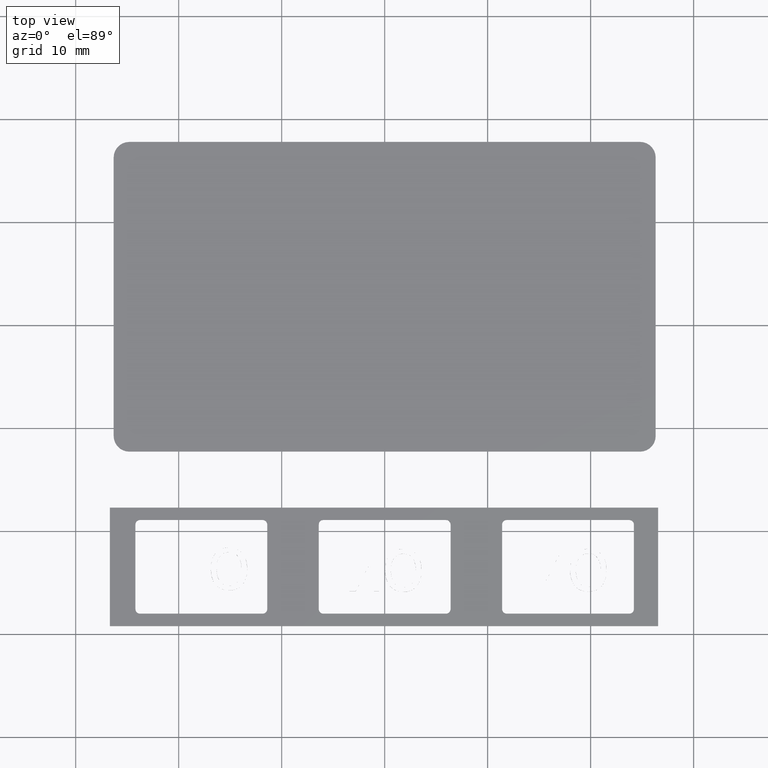
[diagram: clean part render]
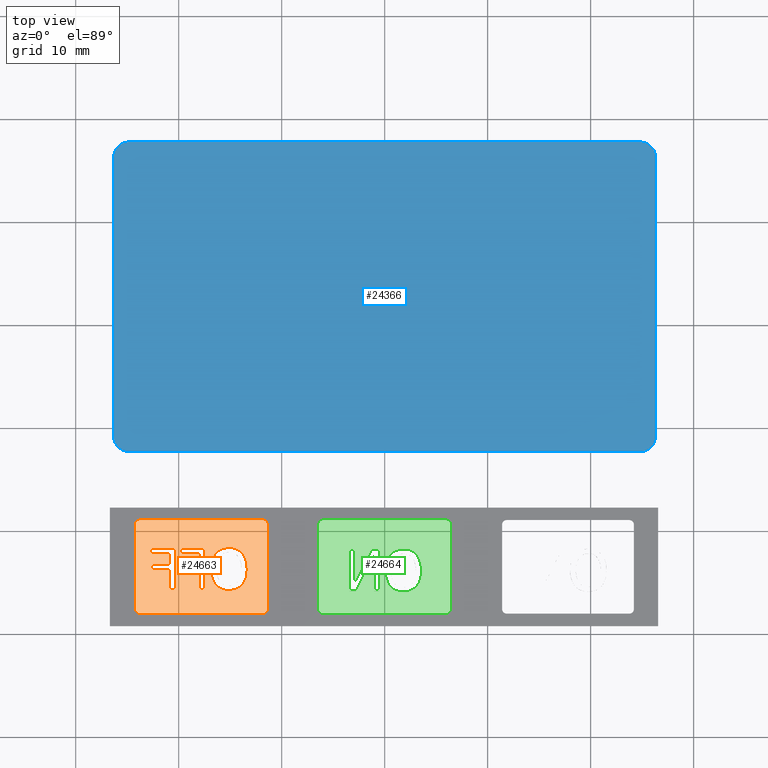
[diagram: same view with three faces highlighted in distinct colors, each labeled with its STEP entity id]
A machine part, top view with three faces highlighted in distinct colors.
Their STEP definitions:

[orange] entity #24663 — the highlighted planar face has unit normal (0, -0, 1).
#72=FACE_BOUND('',#7270,.T.);
#73=FACE_BOUND('',#7271,.T.);
#74=FACE_BOUND('',#7272,.T.);
#339=PLANE('',#27607);
#550=B_SPLINE_CURVE_WITH_KNOTS('',2,(#44091,#44092,#44093,#44094),
 .UNSPECIFIED.,.F.,.F.,(3,1,3),(0.,1.,2.),.UNSPECIFIED.);
#551=B_SPLINE_CURVE_WITH_KNOTS('',2,(#44096,#44097,#44098,#44099),
 .UNSPECIFIED.,.F.,.F.,(3,1,3),(0.,1.,2.),.UNSPECIFIED.);
#552=B_SPLINE_CURVE_WITH_KNOTS('',2,(#44101,#44102,#44103,#44104),
 .UNSPECIFIED.,.F.,.F.,(3,1,3),(0.,1.,2.),.UNSPECIFIED.);
#553=B_SPLINE_CURVE_WITH_KNOTS('',2,(#44106,#44107,#44108,#44109),
 .UNSPECIFIED.,.F.,.F.,(3,1,3),(0.,1.,2.),.UNSPECIFIED.);
#554=B_SPLINE_CURVE_WITH_KNOTS('',2,(#44111,#44112,#44113,#44114),
 .UNSPECIFIED.,.F.,.F.,(3,1,3),(0.,1.,2.),.UNSPECIFIED.);
#555=B_SPLINE_CURVE_WITH_KNOTS('',2,(#44116,#44117,#44118,#44119),
 .UNSPECIFIED.,.F.,.F.,(3,1,3),(0.,1.,2.),.UNSPECIFIED.);
#556=B_SPLINE_CURVE_WITH_KNOTS('',2,(#44121,#44122,#44123,#44124),
 .UNSPECIFIED.,.F.,.F.,(3,1,3),(0.,1.,2.),.UNSPECIFIED.);
#557=B_SPLINE_CURVE_WITH_KNOTS('',2,(#44125,#44126,#44127,#44128),
 .UNSPECIFIED.,.F.,.F.,(3,1,3),(0.,1.,2.),.UNSPECIFIED.);
#1538=LINE('',#40800,#3185);
#1541=LINE('',#40808,#3188);
#1544=LINE('',#40816,#3191);
#1547=LINE('',#40823,#3194);
#2093=LINE('',#44071,#3740);
#2094=LINE('',#44073,#3741);
#2095=LINE('',#44075,#3742);
#2096=LINE('',#44077,#3743);
#2097=LINE('',#44079,#3744);
#2098=LINE('',#44081,#3745);
#2099=LINE('',#44083,#3746);
#2100=LINE('',#44085,#3747);
#2101=LINE('',#44087,#3748);
#2102=LINE('',#44088,#3749);
#2103=LINE('',#44131,#3750);
#2104=LINE('',#44133,#3751);
#2105=LINE('',#44135,#3752);
#2106=LINE('',#44137,#3753);
#2107=LINE('',#44139,#3754);
#2108=LINE('',#44141,#3755);
#2109=LINE('',#44143,#3756);
#2110=LINE('',#44145,#3757);
#2111=LINE('',#44147,#3758);
#2112=LINE('',#44148,#3759);
#3185=VECTOR('',#33627,11.9);
#3188=VECTOR('',#33636,8.2);
#3191=VECTOR('',#33645,11.9);
#3194=VECTOR('',#33654,8.2);
#3740=VECTOR('',#34820,1.12803891470213);
#3741=VECTOR('',#34821,1.78282012381082);
#3742=VECTOR('',#34822,0.473257705593415);
#3743=VECTOR('',#34823,1.78282012381082);
#3744=VECTOR('',#34824,1.92544573371569);
#3745=VECTOR('',#34825,0.531604546009046);
#3746=VECTOR('',#34826,4.00000005960464);
#3747=VECTOR('',#34827,2.39222045704071);
#3748=VECTOR('',#34828,0.473257705593415);
#3749=VECTOR('',#34829,1.86061591103166);
#3750=VECTOR('',#34830,1.12803891470212);
#3751=VECTOR('',#34831,1.78282012381082);
#3752=VECTOR('',#34832,0.473257705593415);
#3753=VECTOR('',#34833,1.78282012381082);
#3754=VECTOR('',#34834,1.92544573371569);
#3755=VECTOR('',#34835,0.531604546009046);
#3756=VECTOR('',#34836,4.00000005960464);
#3757=VECTOR('',#34837,2.39222045704071);
#3758=VECTOR('',#34838,0.473257705593415);
#3759=VECTOR('',#34839,1.86061591103166);
#5941=FACE_OUTER_BOUND('',#7269,.T.);
#7269=EDGE_LOOP('',(#21772,#21773,#21774,#21775,#21776,#21777,#21778,#21779));
#7270=EDGE_LOOP('',(#21780,#21781,#21782,#21783,#21784,#21785,#21786,#21787,
#21788,#21789));
#7271=EDGE_LOOP('',(#21790,#21791,#21792,#21793,#21794,#21795,#21796,#21797));
#7272=EDGE_LOOP('',(#21798,#21799,#21800,#21801,#21802,#21803,#21804,#21805,
#21806,#21807));
#9043=CIRCLE('',#27287,0.45);
#9044=CIRCLE('',#27290,0.45);
#9045=CIRCLE('',#27293,0.45);
#9046=CIRCLE('',#27296,0.45);
#10849=VERTEX_POINT('',#40793);
#10850=VERTEX_POINT('',#40794);
#10851=VERTEX_POINT('',#40799);
#10852=VERTEX_POINT('',#40803);
#10853=VERTEX_POINT('',#40807);
#10854=VERTEX_POINT('',#40811);
#10855=VERTEX_POINT('',#40815);
#10856=VERTEX_POINT('',#40819);
#11313=VERTEX_POINT('',#44069);
#11314=VERTEX_POINT('',#44070);
#11315=VERTEX_POINT('',#44072);
#11316=VERTEX_POINT('',#44074);
#11317=VERTEX_POINT('',#44076);
#11318=VERTEX_POINT('',#44078);
#11319=VERTEX_POINT('',#44080);
#11320=VERTEX_POINT('',#44082);
#11321=VERTEX_POINT('',#44084);
#11322=VERTEX_POINT('',#44086);
#11323=VERTEX_POINT('',#44089);
#11324=VERTEX_POINT('',#44090);
#11325=VERTEX_POINT('',#44095);
#11326=VERTEX_POINT('',#44100);
#11327=VERTEX_POINT('',#44105);
#11328=VERTEX_POINT('',#44110);
#11329=VERTEX_POINT('',#44115);
#11330=VERTEX_POINT('',#44120);
#11331=VERTEX_POINT('',#44129);
#11332=VERTEX_POINT('',#44130);
#11333=VERTEX_POINT('',#44132);
#11334=VERTEX_POINT('',#44134);
#11335=VERTEX_POINT('',#44136);
#11336=VERTEX_POINT('',#44138);
#11337=VERTEX_POINT('',#44140);
#11338=VERTEX_POINT('',#44142);
#11339=VERTEX_POINT('',#44144);
#11340=VERTEX_POINT('',#44146);
#14080=EDGE_CURVE('',#10849,#10850,#9043,.T.);
#14083=EDGE_CURVE('',#10851,#10849,#1538,.T.);
#14085=EDGE_CURVE('',#10852,#10851,#9044,.T.);
#14087=EDGE_CURVE('',#10853,#10852,#1541,.T.);
#14089=EDGE_CURVE('',#10854,#10853,#9045,.T.);
#14091=EDGE_CURVE('',#10855,#10854,#1544,.T.);
#14093=EDGE_CURVE('',#10856,#10855,#9046,.T.);
#14095=EDGE_CURVE('',#10850,#10856,#1547,.T.);
#14823=EDGE_CURVE('',#11313,#11314,#2093,.T.);
#14824=EDGE_CURVE('',#11314,#11315,#2094,.T.);
#14825=EDGE_CURVE('',#11315,#11316,#2095,.T.);
#14826=EDGE_CURVE('',#11316,#11317,#2096,.T.);
#14827=EDGE_CURVE('',#11317,#11318,#2097,.T.);
#14828=EDGE_CURVE('',#11318,#11319,#2098,.T.);
#14829=EDGE_CURVE('',#11319,#11320,#2099,.T.);
#14830=EDGE_CURVE('',#11320,#11321,#2100,.T.);
#14831=EDGE_CURVE('',#11321,#11322,#2101,.T.);
#14832=EDGE_CURVE('',#11322,#11313,#2102,.T.);
#14833=EDGE_CURVE('',#11323,#11324,#550,.T.);
#14834=EDGE_CURVE('',#11324,#11325,#551,.T.);
#14835=EDGE_CURVE('',#11325,#11326,#552,.T.);
#14836=EDGE_CURVE('',#11326,#11327,#553,.T.);
#14837=EDGE_CURVE('',#11327,#11328,#554,.T.);
#14838=EDGE_CURVE('',#11328,#11329,#555,.T.);
#14839=EDGE_CURVE('',#11329,#11330,#556,.T.);
#14840=EDGE_CURVE('',#11330,#11323,#557,.T.);
#14841=EDGE_CURVE('',#11331,#11332,#2103,.T.);
#14842=EDGE_CURVE('',#11332,#11333,#2104,.T.);
#14843=EDGE_CURVE('',#11333,#11334,#2105,.T.);
#14844=EDGE_CURVE('',#11334,#11335,#2106,.T.);
#14845=EDGE_CURVE('',#11335,#11336,#2107,.T.);
#14846=EDGE_CURVE('',#11336,#11337,#2108,.T.);
#14847=EDGE_CURVE('',#11337,#11338,#2109,.T.);
#14848=EDGE_CURVE('',#11338,#11339,#2110,.T.);
#14849=EDGE_CURVE('',#11339,#11340,#2111,.T.);
#14850=EDGE_CURVE('',#11340,#11331,#2112,.T.);
#21772=ORIENTED_EDGE('',*,*,#14095,.T.);
#21773=ORIENTED_EDGE('',*,*,#14093,.T.);
#21774=ORIENTED_EDGE('',*,*,#14091,.T.);
#21775=ORIENTED_EDGE('',*,*,#14089,.T.);
#21776=ORIENTED_EDGE('',*,*,#14087,.T.);
#21777=ORIENTED_EDGE('',*,*,#14085,.T.);
#21778=ORIENTED_EDGE('',*,*,#14083,.T.);
#21779=ORIENTED_EDGE('',*,*,#14080,.T.);
#21780=ORIENTED_EDGE('',*,*,#14823,.T.);
#21781=ORIENTED_EDGE('',*,*,#14824,.T.);
#21782=ORIENTED_EDGE('',*,*,#14825,.T.);
#21783=ORIENTED_EDGE('',*,*,#14826,.T.);
#21784=ORIENTED_EDGE('',*,*,#14827,.T.);
#21785=ORIENTED_EDGE('',*,*,#14828,.T.);
#21786=ORIENTED_EDGE('',*,*,#14829,.T.);
#21787=ORIENTED_EDGE('',*,*,#14830,.T.);
#21788=ORIENTED_EDGE('',*,*,#14831,.T.);
#21789=ORIENTED_EDGE('',*,*,#14832,.T.);
#21790=ORIENTED_EDGE('',*,*,#14833,.T.);
#21791=ORIENTED_EDGE('',*,*,#14834,.T.);
#21792=ORIENTED_EDGE('',*,*,#14835,.T.);
#21793=ORIENTED_EDGE('',*,*,#14836,.T.);
#21794=ORIENTED_EDGE('',*,*,#14837,.T.);
#21795=ORIENTED_EDGE('',*,*,#14838,.T.);
#21796=ORIENTED_EDGE('',*,*,#14839,.T.);
#21797=ORIENTED_EDGE('',*,*,#14840,.T.);
#21798=ORIENTED_EDGE('',*,*,#14841,.T.);
#21799=ORIENTED_EDGE('',*,*,#14842,.T.);
#21800=ORIENTED_EDGE('',*,*,#14843,.T.);
#21801=ORIENTED_EDGE('',*,*,#14844,.T.);
#21802=ORIENTED_EDGE('',*,*,#14845,.T.);
#21803=ORIENTED_EDGE('',*,*,#14846,.T.);
#21804=ORIENTED_EDGE('',*,*,#14847,.T.);
#21805=ORIENTED_EDGE('',*,*,#14848,.T.);
#21806=ORIENTED_EDGE('',*,*,#14849,.T.);
#21807=ORIENTED_EDGE('',*,*,#14850,.T.);
#24663=ADVANCED_FACE('',(#5941,#72,#73,#74),#339,.F.);
#27287=AXIS2_PLACEMENT_3D('',#40795,#33621,#33622);
#27290=AXIS2_PLACEMENT_3D('',#40804,#33631,#33632);
#27293=AXIS2_PLACEMENT_3D('',#40812,#33640,#33641);
#27296=AXIS2_PLACEMENT_3D('',#40820,#33649,#33650);
#27607=AXIS2_PLACEMENT_3D('',#44068,#34818,#34819);
#33621=DIRECTION('center_axis',(-1.19117678683756E-15,1.03039885219751E-17,
-1.));
#33622=DIRECTION('ref_axis',(-2.75152572753243E-16,1.,-3.41278292167793E-17));
#33627=DIRECTION('',(1.,2.75152572753243E-16,-1.19117678683756E-15));
#33631=DIRECTION('center_axis',(-1.19117678683756E-15,1.03039885219751E-17,
-1.));
#33632=DIRECTION('ref_axis',(-1.,-2.75152572753243E-16,-3.5619655373375E-16));
#33636=DIRECTION('',(-8.16724779887465E-16,1.,1.03039885219761E-17));
#33640=DIRECTION('center_axis',(-1.19117678683756E-15,1.03039885219751E-17,
-1.));
#33641=DIRECTION('ref_axis',(2.75152572753243E-16,-1.,3.41278292167793E-17));
#33645=DIRECTION('',(-1.,-2.75152572753243E-16,1.19117678683756E-15));
#33649=DIRECTION('center_axis',(-1.19117678683756E-15,1.03039885219751E-17,
-1.));
#33650=DIRECTION('ref_axis',(1.,2.75152572753243E-16,3.5619655373375E-16));
#33654=DIRECTION('',(8.16724779887465E-16,-1.,-1.03039885219761E-17));
#34818=DIRECTION('center_axis',(1.19117678683756E-15,-1.03039885219751E-17,
1.));
#34819=DIRECTION('ref_axis',(-1.,-7.105427357601E-16,1.19348975147204E-15));
#34820=DIRECTION('',(7.24558038908854E-16,-1.,-1.0303988521976E-17));
#34821=DIRECTION('',(-1.,-7.24558038908853E-16,1.19117678683756E-15));
#34822=DIRECTION('',(7.24558038908854E-16,-1.,-1.0303988521976E-17));
#34823=DIRECTION('',(1.,7.24558038908853E-16,-1.19117678683756E-15));
#34824=DIRECTION('',(7.24558038908854E-16,-1.,-1.0303988521976E-17));
#34825=DIRECTION('',(1.,7.24558038908854E-16,-1.19117678683756E-15));
#34826=DIRECTION('',(-7.24558038908854E-16,1.,1.0303988521976E-17));
#34827=DIRECTION('',(-1.,-7.24558038908854E-16,1.19117678683756E-15));
#34828=DIRECTION('',(7.24558038908854E-16,-1.,-1.0303988521976E-17));
#34829=DIRECTION('',(1.,7.24558038908854E-16,-1.19117678683756E-15));
#34830=DIRECTION('',(7.24558038908854E-16,-1.,-1.0303988521976E-17));
#34831=DIRECTION('',(-1.,-5.70643146426386E-15,1.19117678683756E-15));
#34832=DIRECTION('',(7.24558038908854E-16,-1.,-1.0303988521976E-17));
#34833=DIRECTION('',(1.,7.24558038908854E-16,-1.19117678683756E-15));
#34834=DIRECTION('',(7.24558038908854E-16,-1.,-1.0303988521976E-17));
#34835=DIRECTION('',(1.,7.24558038908854E-16,-1.19117678683756E-15));
#34836=DIRECTION('',(-7.24558038908854E-16,1.,1.0303988521976E-17));
#34837=DIRECTION('',(-1.,-7.24558038908854E-16,1.19117678683756E-15));
#34838=DIRECTION('',(7.24558038908854E-16,-1.,-1.0303988521976E-17));
#34839=DIRECTION('',(1.,7.24558038908854E-16,-1.19117678683756E-15));
#40793=CARTESIAN_POINT('',(-11.8499999999995,-88.9000000000002,0.375000000000023));
#40794=CARTESIAN_POINT('',(-11.3999999999995,-89.3500000000002,0.375000000000014));
#40795=CARTESIAN_POINT('Origin',(-11.8499999999995,-89.3500000000002,0.375000000000005));
#40799=CARTESIAN_POINT('',(-23.7499999999995,-88.9000000000002,0.375000000000032));
#40800=CARTESIAN_POINT('',(-5.92499999999947,-88.9000000000002,0.375000000000014));
#40803=CARTESIAN_POINT('',(-24.1999999999995,-89.3500000000002,0.375000000000032));
#40804=CARTESIAN_POINT('Origin',(-23.7499999999995,-89.3500000000002,0.374999999999996));
#40807=CARTESIAN_POINT('',(-24.1999999999995,-97.5500000000002,0.375000000000032));
#40808=CARTESIAN_POINT('',(-24.1999999999995,-63.6750000000001,0.375000000000032));
#40811=CARTESIAN_POINT('',(-23.7499999999995,-98.0000000000002,0.375000000000032));
#40812=CARTESIAN_POINT('Origin',(-23.7499999999995,-97.5500000000002,0.374999999999996));
#40815=CARTESIAN_POINT('',(-11.8499999999995,-98.0000000000002,0.375000000000023));
#40816=CARTESIAN_POINT('',(-11.8749999999995,-98.0000000000002,0.375000000000023));
#40819=CARTESIAN_POINT('',(-11.3999999999995,-97.5500000000002,0.375000000000014));
#40820=CARTESIAN_POINT('Origin',(-11.8499999999995,-97.5500000000002,0.375000000000005));
#40823=CARTESIAN_POINT('',(-11.3999999999995,-67.7750000000001,0.375000000000023));
#44068=CARTESIAN_POINT('Origin',(5.33151852812161E-13,-38.,0.375000000000005));
#44069=CARTESIAN_POINT('',(-20.8629611318724,-92.1304310814957,0.375000000000032));
#44070=CARTESIAN_POINT('',(-20.8629611318724,-93.2584699961978,0.375000000000032));
#44071=CARTESIAN_POINT('',(-20.8629611318725,-65.6292349980989,0.375000000000023));
#44072=CARTESIAN_POINT('',(-22.6457812556833,-93.2584699961978,0.375000000000032));
#44073=CARTESIAN_POINT('',(-11.3228906278414,-93.2584699961978,0.375000000000023));
#44074=CARTESIAN_POINT('',(-22.6457812556833,-93.7317277017912,0.375000000000032));
#44075=CARTESIAN_POINT('',(-22.6457812556833,-65.8658638508956,0.375000000000032));
#44076=CARTESIAN_POINT('',(-20.8629611318724,-93.7317277017912,0.375000000000032));
#44077=CARTESIAN_POINT('',(-10.4314805659359,-93.7317277017912,0.375000000000023));
#44078=CARTESIAN_POINT('',(-20.8629611318724,-95.6571734355069,0.375000000000032));
#44079=CARTESIAN_POINT('',(-20.8629611318725,-66.8285867177535,0.375000000000023));
#44080=CARTESIAN_POINT('',(-20.3313565858634,-95.6571734355069,0.375000000000032));
#44081=CARTESIAN_POINT('',(-10.1656782929314,-95.6571734355069,0.375000000000014));
#44082=CARTESIAN_POINT('',(-20.3313565858634,-91.6571733759023,0.375000000000032));
#44083=CARTESIAN_POINT('',(-20.3313565858634,-64.8285866879511,0.375000000000023));
#44084=CARTESIAN_POINT('',(-22.7235770429041,-91.6571733759023,0.375000000000032));
#44085=CARTESIAN_POINT('',(-11.3617885214518,-91.6571733759023,0.375000000000023));
#44086=CARTESIAN_POINT('',(-22.7235770429041,-92.1304310814957,0.375000000000032));
#44087=CARTESIAN_POINT('',(-22.7235770429041,-65.0652155407479,0.375000000000032));
#44088=CARTESIAN_POINT('',(-10.4314805659359,-92.1304310814957,0.375000000000023));
#44089=CARTESIAN_POINT('',(-16.8791685279388,-93.6571734057046,0.375000000000032));
#44090=CARTESIAN_POINT('',(-16.399427840077,-95.1968816944503,0.375000000000032));
#44091=CARTESIAN_POINT('Ctrl Pts',(-16.8791685279388,-93.6571734057046,
0.375000000000032));
#44092=CARTESIAN_POINT('Ctrl Pts',(-16.8791685279388,-94.1433970758348,
0.375000000000032));
#44093=CARTESIAN_POINT('Ctrl Pts',(-16.6328152017395,-94.9310794214458,
0.375000000000032));
#44094=CARTESIAN_POINT('Ctrl Pts',(-16.399427840077,-95.1968816944503,0.375000000000032));
#44095=CARTESIAN_POINT('',(-15.1093143686648,-95.7414522049961,0.375000000000032));
#44096=CARTESIAN_POINT('Ctrl Pts',(-16.399427840077,-95.1968816944503,0.375000000000032));
#44097=CARTESIAN_POINT('Ctrl Pts',(-16.1530745138777,-95.4756499319916,
0.375000000000032));
#44098=CARTESIAN_POINT('Ctrl Pts',(-15.5015347959032,-95.7414522049961,
0.375000000000032));
#44099=CARTESIAN_POINT('Ctrl Pts',(-15.1093143686648,-95.7414522049961,
0.375000000000032));
#44100=CARTESIAN_POINT('',(-13.8192008972526,-95.1968816944503,0.375000000000032));
#44101=CARTESIAN_POINT('Ctrl Pts',(-15.1093143686648,-95.7414522049961,
0.375000000000032));
#44102=CARTESIAN_POINT('Ctrl Pts',(-14.7041279768896,-95.7414522049961,
0.375000000000032));
#44103=CARTESIAN_POINT('Ctrl Pts',(-14.0558297500493,-95.465925458589,0.375000000000032));
#44104=CARTESIAN_POINT('Ctrl Pts',(-13.8192008972526,-95.1968816944503,
0.375000000000032));
#44105=CARTESIAN_POINT('',(-13.342701700525,-93.6571734057046,0.375000000000032));
#44106=CARTESIAN_POINT('Ctrl Pts',(-13.8192008972526,-95.1968816944503,
0.375000000000032));
#44107=CARTESIAN_POINT('Ctrl Pts',(-13.5890550267243,-94.9310794214458,
0.375000000000032));
#44108=CARTESIAN_POINT('Ctrl Pts',(-13.342701700525,-94.1498800581032,0.375000000000032));
#44109=CARTESIAN_POINT('Ctrl Pts',(-13.342701700525,-93.6571734057046,0.375000000000032));
#44110=CARTESIAN_POINT('',(-13.8224423883868,-92.1142236258247,0.375000000000032));
#44111=CARTESIAN_POINT('Ctrl Pts',(-13.342701700525,-93.6571734057046,0.375000000000032));
#44112=CARTESIAN_POINT('Ctrl Pts',(-13.342701700525,-93.1547422799034,0.375000000000032));
#44113=CARTESIAN_POINT('Ctrl Pts',(-13.5922965178585,-92.3897503722318,
0.375000000000032));
#44114=CARTESIAN_POINT('Ctrl Pts',(-13.8224423883868,-92.1142236258247,
0.375000000000032));
#44115=CARTESIAN_POINT('',(-15.1093143686648,-91.572894606413,0.375000000000032));
#44116=CARTESIAN_POINT('Ctrl Pts',(-13.8224423883868,-92.1142236258247,
0.375000000000032));
#44117=CARTESIAN_POINT('Ctrl Pts',(-14.0558297500493,-91.8484213528201,
0.375000000000032));
#44118=CARTESIAN_POINT('Ctrl Pts',(-14.7073694680238,-91.572894606413,0.375000000000032));
#44119=CARTESIAN_POINT('Ctrl Pts',(-15.1093143686648,-91.572894606413,0.375000000000032));
#44120=CARTESIAN_POINT('',(-16.399427840077,-92.1142236258247,0.375000000000032));
#44121=CARTESIAN_POINT('Ctrl Pts',(-15.1093143686648,-91.572894606413,0.375000000000032));
#44122=CARTESIAN_POINT('Ctrl Pts',(-15.5177422515742,-91.572894606413,0.375000000000032));
#44123=CARTESIAN_POINT('Ctrl Pts',(-16.1725234606829,-91.8581458262227,
0.375000000000032));
#44124=CARTESIAN_POINT('Ctrl Pts',(-16.399427840077,-92.1142236258247,0.375000000000032));
#44125=CARTESIAN_POINT('Ctrl Pts',(-16.399427840077,-92.1142236258247,0.375000000000032));
#44126=CARTESIAN_POINT('Ctrl Pts',(-16.6263322194711,-92.3800258988292,
0.375000000000032));
#44127=CARTESIAN_POINT('Ctrl Pts',(-16.8791685279388,-93.1579837710376,
0.375000000000032));
#44128=CARTESIAN_POINT('Ctrl Pts',(-16.8791685279388,-93.6571734057046,
0.375000000000032));
#44129=CARTESIAN_POINT('',(-17.9942414781041,-92.1304310814957,0.375000000000023));
#44130=CARTESIAN_POINT('',(-17.9942414781041,-93.2584699961978,0.375000000000023));
#44131=CARTESIAN_POINT('',(-17.9942414781041,-65.6292349980989,0.375000000000023));
#44132=CARTESIAN_POINT('',(-19.7770616019149,-93.2584699961978,0.375000000000032));
#44133=CARTESIAN_POINT('',(-9.88853080095705,-93.2584699961977,0.375000000000014));
#44134=CARTESIAN_POINT('',(-19.7770616019149,-93.7317277017912,0.375000000000032));
#44135=CARTESIAN_POINT('',(-19.777061601915,-65.8658638508956,0.375000000000023));
#44136=CARTESIAN_POINT('',(-17.9942414781041,-93.7317277017912,0.375000000000023));
#44137=CARTESIAN_POINT('',(-8.99712073905178,-93.7317277017912,0.375000000000014));
#44138=CARTESIAN_POINT('',(-17.9942414781041,-95.6571734355069,0.375000000000023));
#44139=CARTESIAN_POINT('',(-17.9942414781041,-66.8285867177535,0.375000000000023));
#44140=CARTESIAN_POINT('',(-17.4626369320951,-95.6571734355069,0.375000000000032));
#44141=CARTESIAN_POINT('',(-8.73131846604725,-95.6571734355069,0.375000000000014));
#44142=CARTESIAN_POINT('',(-17.4626369320951,-91.6571733759023,0.375000000000032));
#44143=CARTESIAN_POINT('',(-17.4626369320951,-64.8285866879511,0.375000000000023));
#44144=CARTESIAN_POINT('',(-19.8548573891358,-91.6571733759023,0.375000000000032));
#44145=CARTESIAN_POINT('',(-9.92742869456761,-91.6571733759023,0.375000000000014));
#44146=CARTESIAN_POINT('',(-19.8548573891358,-92.1304310814957,0.375000000000032));
#44147=CARTESIAN_POINT('',(-19.8548573891358,-65.0652155407479,0.375000000000023));
#44148=CARTESIAN_POINT('',(-8.99712073905178,-92.1304310814957,0.375000000000014));

[blue] entity #24366 — the highlighted planar face has unit normal (0, -0, 1).
#140=PLANE('',#27298);
#1548=LINE('',#40827,#3195);
#1549=LINE('',#40831,#3196);
#1550=LINE('',#40835,#3197);
#1551=LINE('',#40839,#3198);
#3195=VECTOR('',#33657,49.6);
#3196=VECTOR('',#33660,27.05);
#3197=VECTOR('',#33663,49.6);
#3198=VECTOR('',#33666,27.05);
#5644=FACE_OUTER_BOUND('',#6943,.T.);
#6943=EDGE_LOOP('',(#20228,#20229,#20230,#20231,#20232,#20233,#20234,#20235));
#9047=CIRCLE('',#27299,1.51066017177982);
#9048=CIRCLE('',#27300,1.51066017177982);
#9049=CIRCLE('',#27301,1.51066017177982);
#9050=CIRCLE('',#27302,1.51066017177982);
#10857=VERTEX_POINT('',#40825);
#10858=VERTEX_POINT('',#40826);
#10859=VERTEX_POINT('',#40828);
#10860=VERTEX_POINT('',#40830);
#10861=VERTEX_POINT('',#40832);
#10862=VERTEX_POINT('',#40834);
#10863=VERTEX_POINT('',#40836);
#10864=VERTEX_POINT('',#40838);
#14096=EDGE_CURVE('',#10857,#10858,#1548,.T.);
#14097=EDGE_CURVE('',#10859,#10857,#9047,.T.);
#14098=EDGE_CURVE('',#10860,#10859,#1549,.T.);
#14099=EDGE_CURVE('',#10861,#10860,#9048,.T.);
#14100=EDGE_CURVE('',#10862,#10861,#1550,.T.);
#14101=EDGE_CURVE('',#10863,#10862,#9049,.T.);
#14102=EDGE_CURVE('',#10864,#10863,#1551,.T.);
#14103=EDGE_CURVE('',#10858,#10864,#9050,.T.);
#20228=ORIENTED_EDGE('',*,*,#14096,.F.);
#20229=ORIENTED_EDGE('',*,*,#14097,.F.);
#20230=ORIENTED_EDGE('',*,*,#14098,.F.);
#20231=ORIENTED_EDGE('',*,*,#14099,.F.);
#20232=ORIENTED_EDGE('',*,*,#14100,.F.);
#20233=ORIENTED_EDGE('',*,*,#14101,.F.);
#20234=ORIENTED_EDGE('',*,*,#14102,.F.);
#20235=ORIENTED_EDGE('',*,*,#14103,.F.);
#24366=ADVANCED_FACE('',(#5644),#140,.F.);
#27298=AXIS2_PLACEMENT_3D('',#40824,#33655,#33656);
#27299=AXIS2_PLACEMENT_3D('',#40829,#33658,#33659);
#27300=AXIS2_PLACEMENT_3D('',#40833,#33661,#33662);
#27301=AXIS2_PLACEMENT_3D('',#40837,#33664,#33665);
#27302=AXIS2_PLACEMENT_3D('',#40840,#33667,#33668);
#33655=DIRECTION('center_axis',(1.19117678683756E-15,-1.03039885219751E-17,
1.));
#33656=DIRECTION('ref_axis',(-1.,-1.4210854715202E-15,1.18793863634892E-15));
#33657=DIRECTION('',(1.,6.33289032309745E-16,-1.19117678683756E-15));
#33658=DIRECTION('center_axis',(1.19117678683756E-15,-1.03039885219751E-17,
1.));
#33659=DIRECTION('ref_axis',(2.75152572753243E-16,-1.,-1.03039885219755E-17));
#33660=DIRECTION('',(6.03499493159943E-16,-1.,-1.03039885219759E-17));
#33661=DIRECTION('center_axis',(1.19117678683756E-15,-1.03039885219751E-17,
1.));
#33662=DIRECTION('ref_axis',(-1.,-2.75152572753243E-16,1.19117678683756E-15));
#33663=DIRECTION('',(-1.,-6.33289032309745E-16,1.19117678683756E-15));
#33664=DIRECTION('center_axis',(1.19117678683756E-15,-1.03039885219751E-17,
1.));
#33665=DIRECTION('ref_axis',(-6.15455838679353E-15,1.,1.03039885219825E-17));
#33666=DIRECTION('',(3.00831663131376E-15,1.,1.03039885219716E-17));
#33667=DIRECTION('center_axis',(1.19117678683756E-15,-1.03039885219751E-17,
1.));
#33668=DIRECTION('ref_axis',(1.,2.75152572753243E-16,-1.19117678683756E-15));
#40824=CARTESIAN_POINT('Origin',(4.94853931096204E-13,-67.2250000000003,
0.574999999999983));
#40825=CARTESIAN_POINT('',(-24.7999999999995,-82.2606601717801,0.575000000000028));
#40826=CARTESIAN_POINT('',(24.8000000000005,-82.2606601717801,0.574999999999966));
#40827=CARTESIAN_POINT('',(24.8000000000005,-82.2606601717801,0.574999999999966));
#40828=CARTESIAN_POINT('',(-26.3106601717794,-80.7500000000002,0.575000000000028));
#40829=CARTESIAN_POINT('Origin',(-24.7999999999995,-80.7500000000002,0.575000000000028));
#40830=CARTESIAN_POINT('',(-26.3106601717794,-53.7000000000002,0.575000000000028));
#40831=CARTESIAN_POINT('',(-26.3106601717794,-80.7500000000002,0.575000000000028));
#40832=CARTESIAN_POINT('',(-24.7999999999995,-52.1893398282204,0.575000000000028));
#40833=CARTESIAN_POINT('Origin',(-24.7999999999995,-53.7000000000002,0.575000000000028));
#40834=CARTESIAN_POINT('',(24.8000000000005,-52.1893398282204,0.574999999999966));
#40835=CARTESIAN_POINT('',(-24.7999999999995,-52.1893398282204,0.575000000000028));
#40836=CARTESIAN_POINT('',(26.3106601717804,-53.7000000000002,0.574999999999966));
#40837=CARTESIAN_POINT('Origin',(24.8000000000005,-53.7000000000002,0.574999999999966));
#40838=CARTESIAN_POINT('',(26.3106601717803,-80.7500000000002,0.574999999999966));
#40839=CARTESIAN_POINT('',(26.3106601717804,-53.7000000000002,0.574999999999966));
#40840=CARTESIAN_POINT('Origin',(24.8000000000005,-80.7500000000002,0.574999999999966));

[green] entity #24664 — the highlighted planar face has unit normal (0, -0, 1).
#75=FACE_BOUND('',#7274,.T.);
#76=FACE_BOUND('',#7275,.T.);
#340=PLANE('',#27608);
#558=B_SPLINE_CURVE_WITH_KNOTS('',2,(#44172,#44173,#44174,#44175),
 .UNSPECIFIED.,.F.,.F.,(3,1,3),(0.,1.,2.),.UNSPECIFIED.);
#559=B_SPLINE_CURVE_WITH_KNOTS('',2,(#44177,#44178,#44179,#44180),
 .UNSPECIFIED.,.F.,.F.,(3,1,3),(0.,1.,2.),.UNSPECIFIED.);
#560=B_SPLINE_CURVE_WITH_KNOTS('',2,(#44182,#44183,#44184,#44185),
 .UNSPECIFIED.,.F.,.F.,(3,1,3),(0.,1.,2.),.UNSPECIFIED.);
#561=B_SPLINE_CURVE_WITH_KNOTS('',2,(#44187,#44188,#44189,#44190),
 .UNSPECIFIED.,.F.,.F.,(3,1,3),(0.,1.,2.),.UNSPECIFIED.);
#562=B_SPLINE_CURVE_WITH_KNOTS('',2,(#44192,#44193,#44194,#44195),
 .UNSPECIFIED.,.F.,.F.,(3,1,3),(0.,1.,2.),.UNSPECIFIED.);
#563=B_SPLINE_CURVE_WITH_KNOTS('',2,(#44197,#44198,#44199,#44200),
 .UNSPECIFIED.,.F.,.F.,(3,1,3),(0.,1.,2.),.UNSPECIFIED.);
#564=B_SPLINE_CURVE_WITH_KNOTS('',2,(#44202,#44203,#44204,#44205),
 .UNSPECIFIED.,.F.,.F.,(3,1,3),(0.,1.,2.),.UNSPECIFIED.);
#565=B_SPLINE_CURVE_WITH_KNOTS('',2,(#44206,#44207,#44208,#44209),
 .UNSPECIFIED.,.F.,.F.,(3,1,3),(0.,1.,2.),.UNSPECIFIED.);
#1526=LINE('',#40768,#3173);
#1529=LINE('',#40776,#3176);
#1532=LINE('',#40784,#3179);
#1535=LINE('',#40791,#3182);
#2113=LINE('',#44152,#3760);
#2114=LINE('',#44154,#3761);
#2115=LINE('',#44156,#3762);
#2116=LINE('',#44158,#3763);
#2117=LINE('',#44160,#3764);
#2118=LINE('',#44162,#3765);
#2119=LINE('',#44164,#3766);
#2120=LINE('',#44166,#3767);
#2121=LINE('',#44168,#3768);
#2122=LINE('',#44169,#3769);
#3173=VECTOR('',#33591,8.2);
#3176=VECTOR('',#33600,11.9);
#3179=VECTOR('',#33609,8.2);
#3182=VECTOR('',#33618,11.9);
#3760=VECTOR('',#34842,3.87654693840727);
#3761=VECTOR('',#34843,3.44894656679039);
#3762=VECTOR('',#34844,0.495948143532834);
#3763=VECTOR('',#34845,4.00000005960464);
#3764=VECTOR('',#34846,0.755267434268951);
#3765=VECTOR('',#34847,3.55315041912798);
#3766=VECTOR('',#34848,3.16693683811486);
#3767=VECTOR('',#34849,0.495948143532825);
#3768=VECTOR('',#34850,4.00000005960464);
#3769=VECTOR('',#34851,0.596434368693073);
#5942=FACE_OUTER_BOUND('',#7273,.T.);
#7273=EDGE_LOOP('',(#21808,#21809,#21810,#21811,#21812,#21813,#21814,#21815));
#7274=EDGE_LOOP('',(#21816,#21817,#21818,#21819,#21820,#21821,#21822,#21823,
#21824,#21825));
#7275=EDGE_LOOP('',(#21826,#21827,#21828,#21829,#21830,#21831,#21832,#21833));
#9039=CIRCLE('',#27275,0.45);
#9040=CIRCLE('',#27278,0.45);
#9041=CIRCLE('',#27281,0.45);
#9042=CIRCLE('',#27284,0.45);
#10841=VERTEX_POINT('',#40761);
#10842=VERTEX_POINT('',#40762);
#10843=VERTEX_POINT('',#40767);
#10844=VERTEX_POINT('',#40771);
#10845=VERTEX_POINT('',#40775);
#10846=VERTEX_POINT('',#40779);
#10847=VERTEX_POINT('',#40783);
#10848=VERTEX_POINT('',#40787);
#11341=VERTEX_POINT('',#44150);
#11342=VERTEX_POINT('',#44151);
#11343=VERTEX_POINT('',#44153);
#11344=VERTEX_POINT('',#44155);
#11345=VERTEX_POINT('',#44157);
#11346=VERTEX_POINT('',#44159);
#11347=VERTEX_POINT('',#44161);
#11348=VERTEX_POINT('',#44163);
#11349=VERTEX_POINT('',#44165);
#11350=VERTEX_POINT('',#44167);
#11351=VERTEX_POINT('',#44170);
#11352=VERTEX_POINT('',#44171);
#11353=VERTEX_POINT('',#44176);
#11354=VERTEX_POINT('',#44181);
#11355=VERTEX_POINT('',#44186);
#11356=VERTEX_POINT('',#44191);
#11357=VERTEX_POINT('',#44196);
#11358=VERTEX_POINT('',#44201);
#14064=EDGE_CURVE('',#10841,#10842,#9039,.T.);
#14067=EDGE_CURVE('',#10843,#10841,#1526,.T.);
#14069=EDGE_CURVE('',#10844,#10843,#9040,.T.);
#14071=EDGE_CURVE('',#10845,#10844,#1529,.T.);
#14073=EDGE_CURVE('',#10846,#10845,#9041,.T.);
#14075=EDGE_CURVE('',#10847,#10846,#1532,.T.);
#14077=EDGE_CURVE('',#10848,#10847,#9042,.T.);
#14079=EDGE_CURVE('',#10842,#10848,#1535,.T.);
#14851=EDGE_CURVE('',#11341,#11342,#2113,.T.);
#14852=EDGE_CURVE('',#11342,#11343,#2114,.T.);
#14853=EDGE_CURVE('',#11343,#11344,#2115,.T.);
#14854=EDGE_CURVE('',#11344,#11345,#2116,.T.);
#14855=EDGE_CURVE('',#11345,#11346,#2117,.T.);
#14856=EDGE_CURVE('',#11346,#11347,#2118,.T.);
#14857=EDGE_CURVE('',#11347,#11348,#2119,.T.);
#14858=EDGE_CURVE('',#11348,#11349,#2120,.T.);
#14859=EDGE_CURVE('',#11349,#11350,#2121,.T.);
#14860=EDGE_CURVE('',#11350,#11341,#2122,.T.);
#14861=EDGE_CURVE('',#11351,#11352,#558,.T.);
#14862=EDGE_CURVE('',#11352,#11353,#559,.T.);
#14863=EDGE_CURVE('',#11353,#11354,#560,.T.);
#14864=EDGE_CURVE('',#11354,#11355,#561,.T.);
#14865=EDGE_CURVE('',#11355,#11356,#562,.T.);
#14866=EDGE_CURVE('',#11356,#11357,#563,.T.);
#14867=EDGE_CURVE('',#11357,#11358,#564,.T.);
#14868=EDGE_CURVE('',#11358,#11351,#565,.T.);
#21808=ORIENTED_EDGE('',*,*,#14079,.T.);
#21809=ORIENTED_EDGE('',*,*,#14077,.T.);
#21810=ORIENTED_EDGE('',*,*,#14075,.T.);
#21811=ORIENTED_EDGE('',*,*,#14073,.T.);
#21812=ORIENTED_EDGE('',*,*,#14071,.T.);
#21813=ORIENTED_EDGE('',*,*,#14069,.T.);
#21814=ORIENTED_EDGE('',*,*,#14067,.T.);
#21815=ORIENTED_EDGE('',*,*,#14064,.T.);
#21816=ORIENTED_EDGE('',*,*,#14851,.T.);
#21817=ORIENTED_EDGE('',*,*,#14852,.T.);
#21818=ORIENTED_EDGE('',*,*,#14853,.T.);
#21819=ORIENTED_EDGE('',*,*,#14854,.T.);
#21820=ORIENTED_EDGE('',*,*,#14855,.T.);
#21821=ORIENTED_EDGE('',*,*,#14856,.T.);
#21822=ORIENTED_EDGE('',*,*,#14857,.T.);
#21823=ORIENTED_EDGE('',*,*,#14858,.T.);
#21824=ORIENTED_EDGE('',*,*,#14859,.T.);
#21825=ORIENTED_EDGE('',*,*,#14860,.T.);
#21826=ORIENTED_EDGE('',*,*,#14861,.T.);
#21827=ORIENTED_EDGE('',*,*,#14862,.T.);
#21828=ORIENTED_EDGE('',*,*,#14863,.T.);
#21829=ORIENTED_EDGE('',*,*,#14864,.T.);
#21830=ORIENTED_EDGE('',*,*,#14865,.T.);
#21831=ORIENTED_EDGE('',*,*,#14866,.T.);
#21832=ORIENTED_EDGE('',*,*,#14867,.T.);
#21833=ORIENTED_EDGE('',*,*,#14868,.T.);
#24664=ADVANCED_FACE('',(#5942,#75,#76),#340,.F.);
#27275=AXIS2_PLACEMENT_3D('',#40763,#33585,#33586);
#27278=AXIS2_PLACEMENT_3D('',#40772,#33595,#33596);
#27281=AXIS2_PLACEMENT_3D('',#40780,#33604,#33605);
#27284=AXIS2_PLACEMENT_3D('',#40788,#33613,#33614);
#27608=AXIS2_PLACEMENT_3D('',#44149,#34840,#34841);
#33585=DIRECTION('center_axis',(-1.19117678683756E-15,1.03039885219751E-17,
-1.));
#33586=DIRECTION('ref_axis',(1.,2.75152572753243E-16,3.5619655373375E-16));
#33591=DIRECTION('',(2.75152572753243E-16,-1.,-1.03039885219755E-17));
#33595=DIRECTION('center_axis',(-1.19117678683756E-15,1.03039885219751E-17,
-1.));
#33596=DIRECTION('ref_axis',(-2.75152572753243E-16,1.,-3.41278292167793E-17));
#33600=DIRECTION('',(1.,2.75152572753243E-16,-1.19117678683756E-15));
#33604=DIRECTION('center_axis',(-1.19117678683756E-15,1.03039885219751E-17,
-1.));
#33605=DIRECTION('ref_axis',(-1.,-2.75152572753243E-16,-3.5619655373375E-16));
#33609=DIRECTION('',(-8.16724779887465E-16,1.,1.03039885219761E-17));
#33613=DIRECTION('center_axis',(-1.19117678683756E-15,1.03039885219751E-17,
-1.));
#33614=DIRECTION('ref_axis',(2.75152572753243E-16,-1.,3.41278292167793E-17));
#33618=DIRECTION('',(-1.,-2.75152572753243E-16,1.19117678683756E-15));
#34840=DIRECTION('center_axis',(1.19117678683756E-15,-1.03039885219751E-17,
1.));
#34841=DIRECTION('ref_axis',(-1.,-7.105427357601E-16,1.19348975147204E-15));
#34842=DIRECTION('',(0.456554296231785,0.889695551631174,-5.34669466850201E-16));
#34843=DIRECTION('',(7.24558038908854E-16,-1.,-1.0303988521976E-17));
#34844=DIRECTION('',(1.,7.24558038908854E-16,-1.19117678683756E-15));
#34845=DIRECTION('',(-7.24558038908854E-16,1.,1.0303988521976E-17));
#34846=DIRECTION('',(-1.,-7.24558038908854E-16,1.19117678683756E-15));
#34847=DIRECTION('',(-0.453406386913819,-0.891303903450308,5.30903177904887E-16));
#34848=DIRECTION('',(-7.24558038908854E-16,1.,1.0303988521976E-17));
#34849=DIRECTION('',(-1.,-7.24558038908854E-16,1.19117678683756E-15));
#34850=DIRECTION('',(7.24558038908854E-16,-1.,-1.0303988521976E-17));
#34851=DIRECTION('',(1.,7.24558038908854E-16,-1.19117678683756E-15));
#40761=CARTESIAN_POINT('',(6.40000000000052,-97.5500000000002,0.374999999999988));
#40762=CARTESIAN_POINT('',(5.95000000000052,-98.0000000000002,0.374999999999988));
#40763=CARTESIAN_POINT('Origin',(5.95000000000052,-97.5500000000002,0.375000000000005));
#40767=CARTESIAN_POINT('',(6.40000000000052,-89.3500000000002,0.374999999999988));
#40768=CARTESIAN_POINT('',(6.40000000000051,-67.7750000000001,0.374999999999996));
#40771=CARTESIAN_POINT('',(5.95000000000052,-88.9000000000002,0.374999999999988));
#40772=CARTESIAN_POINT('Origin',(5.95000000000052,-89.3500000000002,0.375000000000005));
#40775=CARTESIAN_POINT('',(-5.94999999999948,-88.9000000000002,0.375000000000014));
#40776=CARTESIAN_POINT('',(2.97500000000053,-88.9000000000002,0.374999999999996));
#40779=CARTESIAN_POINT('',(-6.39999999999948,-89.3500000000002,0.375000000000014));
#40780=CARTESIAN_POINT('Origin',(-5.94999999999948,-89.3500000000002,0.375000000000005));
#40783=CARTESIAN_POINT('',(-6.39999999999947,-97.5500000000002,0.375000000000014));
#40784=CARTESIAN_POINT('',(-6.3999999999995,-63.6750000000001,0.375000000000014));
#40787=CARTESIAN_POINT('',(-5.94999999999948,-98.0000000000002,0.375000000000005));
#40788=CARTESIAN_POINT('Origin',(-5.94999999999948,-97.5500000000002,0.375000000000005));
#40791=CARTESIAN_POINT('',(-2.97499999999946,-98.0000000000002,0.375000000000005));
#44149=CARTESIAN_POINT('Origin',(5.33151852812161E-13,-38.,0.375000000000005));
#44150=CARTESIAN_POINT('',(-2.8026256464124,-95.8012044244953,0.375000000000014));
#44151=CARTESIAN_POINT('',(-1.03277148713839,-92.3522578577049,0.375000000000005));
#44152=CARTESIAN_POINT('',(10.1136542852458,-70.6310178910074,0.374999999999996));
#44153=CARTESIAN_POINT('',(-1.03277148713838,-95.8012044244953,0.375000000000005));
#44154=CARTESIAN_POINT('',(-1.03277148713841,-66.9006022122477,0.375000000000005));
#44155=CARTESIAN_POINT('',(-0.53682334360555,-95.8012044244953,0.375000000000005));
#44156=CARTESIAN_POINT('',(-0.268411671802488,-95.8012044244953,0.375000000000005));
#44157=CARTESIAN_POINT('',(-0.536823343605553,-91.8012043648907,0.375000000000005));
#44158=CARTESIAN_POINT('',(-0.536823343605573,-64.9006021824453,0.375000000000005));
#44159=CARTESIAN_POINT('',(-1.2920907778745,-91.8012043648907,0.375000000000005));
#44160=CARTESIAN_POINT('',(-0.646045388936966,-91.8012043648907,0.375000000000005));
#44161=CARTESIAN_POINT('',(-2.90311187157264,-94.9681412030055,0.375000000000014));
#44162=CARTESIAN_POINT('',(8.90635987051439,-71.7531434323434,0.374999999999988));
#44163=CARTESIAN_POINT('',(-2.90311187157265,-91.8012043648907,0.375000000000014));
#44164=CARTESIAN_POINT('',(-2.90311187157267,-64.9006021824453,0.375000000000005));
#44165=CARTESIAN_POINT('',(-3.39906001510547,-91.8012043648907,0.375000000000014));
#44166=CARTESIAN_POINT('',(-1.69953000755245,-91.8012043648907,0.375000000000005));
#44167=CARTESIAN_POINT('',(-3.39906001510547,-95.8012044244953,0.375000000000014));
#44168=CARTESIAN_POINT('',(-3.39906001510549,-66.9006022122477,0.375000000000005));
#44169=CARTESIAN_POINT('',(-1.40131282320591,-95.8012044244953,0.375000000000005));
#44170=CARTESIAN_POINT('',(0.0466450605507102,-93.801204394693,0.375000000000005));
#44171=CARTESIAN_POINT('',(0.526385748412532,-95.3409126834387,0.375000000000005));
#44172=CARTESIAN_POINT('Ctrl Pts',(0.0466450605507102,-93.801204394693,
0.375000000000005));
#44173=CARTESIAN_POINT('Ctrl Pts',(0.0466450605507106,-94.2874280648232,
0.375000000000005));
#44174=CARTESIAN_POINT('Ctrl Pts',(0.292998386750027,-95.0751104104342,
0.375000000000005));
#44175=CARTESIAN_POINT('Ctrl Pts',(0.526385748412532,-95.3409126834387,
0.375000000000005));
#44176=CARTESIAN_POINT('',(1.81649921982473,-95.8854831939846,0.375000000000005));
#44177=CARTESIAN_POINT('Ctrl Pts',(0.526385748412532,-95.3409126834387,
0.375000000000005));
#44178=CARTESIAN_POINT('Ctrl Pts',(0.772739074611848,-95.61968092098,0.375000000000005));
#44179=CARTESIAN_POINT('Ctrl Pts',(1.42427879258635,-95.8854831939846,0.375000000000005));
#44180=CARTESIAN_POINT('Ctrl Pts',(1.81649921982473,-95.8854831939846,0.375000000000005));
#44181=CARTESIAN_POINT('',(3.10661269123692,-95.3409126834387,0.375000000000005));
#44182=CARTESIAN_POINT('Ctrl Pts',(1.81649921982473,-95.8854831939846,0.375000000000005));
#44183=CARTESIAN_POINT('Ctrl Pts',(2.22168561159992,-95.8854831939846,0.375000000000005));
#44184=CARTESIAN_POINT('Ctrl Pts',(2.86998383844022,-95.6099564475774,0.375000000000005));
#44185=CARTESIAN_POINT('Ctrl Pts',(3.10661269123692,-95.3409126834387,0.375000000000005));
#44186=CARTESIAN_POINT('',(3.58311188796454,-93.801204394693,0.375000000000005));
#44187=CARTESIAN_POINT('Ctrl Pts',(3.10661269123692,-95.3409126834387,0.375000000000005));
#44188=CARTESIAN_POINT('Ctrl Pts',(3.33675856176523,-95.0751104104342,0.375000000000005));
#44189=CARTESIAN_POINT('Ctrl Pts',(3.58311188796454,-94.2939110470916,0.375000000000005));
#44190=CARTESIAN_POINT('Ctrl Pts',(3.58311188796454,-93.801204394693,0.375000000000005));
#44191=CARTESIAN_POINT('',(3.10337120010272,-92.2582546148131,0.375000000000005));
#44192=CARTESIAN_POINT('Ctrl Pts',(3.58311188796454,-93.801204394693,0.375000000000005));
#44193=CARTESIAN_POINT('Ctrl Pts',(3.58311188796454,-93.2987732688918,0.375000000000005));
#44194=CARTESIAN_POINT('Ctrl Pts',(3.33351707063103,-92.5337813612202,0.375000000000005));
#44195=CARTESIAN_POINT('Ctrl Pts',(3.10337120010272,-92.2582546148131,0.375000000000005));
#44196=CARTESIAN_POINT('',(1.81649921982473,-91.7169255954014,0.375000000000005));
#44197=CARTESIAN_POINT('Ctrl Pts',(3.10337120010272,-92.2582546148131,0.375000000000005));
#44198=CARTESIAN_POINT('Ctrl Pts',(2.86998383844021,-91.9924523418086,0.375000000000005));
#44199=CARTESIAN_POINT('Ctrl Pts',(2.21844412046571,-91.7169255954014,0.375000000000005));
#44200=CARTESIAN_POINT('Ctrl Pts',(1.81649921982473,-91.7169255954014,0.375000000000005));
#44201=CARTESIAN_POINT('',(0.52638574841253,-92.2582546148131,0.375000000000005));
#44202=CARTESIAN_POINT('Ctrl Pts',(1.81649921982473,-91.7169255954014,0.375000000000005));
#44203=CARTESIAN_POINT('Ctrl Pts',(1.40807133691534,-91.7169255954014,0.375000000000005));
#44204=CARTESIAN_POINT('Ctrl Pts',(0.753290127806638,-92.0021768152112,
0.375000000000005));
#44205=CARTESIAN_POINT('Ctrl Pts',(0.52638574841253,-92.2582546148131,0.375000000000005));
#44206=CARTESIAN_POINT('Ctrl Pts',(0.52638574841253,-92.2582546148131,0.375000000000005));
#44207=CARTESIAN_POINT('Ctrl Pts',(0.29948136901843,-92.5240568878176,0.375000000000005));
#44208=CARTESIAN_POINT('Ctrl Pts',(0.0466450605507099,-93.302014760026,
0.375000000000005));
#44209=CARTESIAN_POINT('Ctrl Pts',(0.0466450605507102,-93.801204394693,
0.375000000000005));